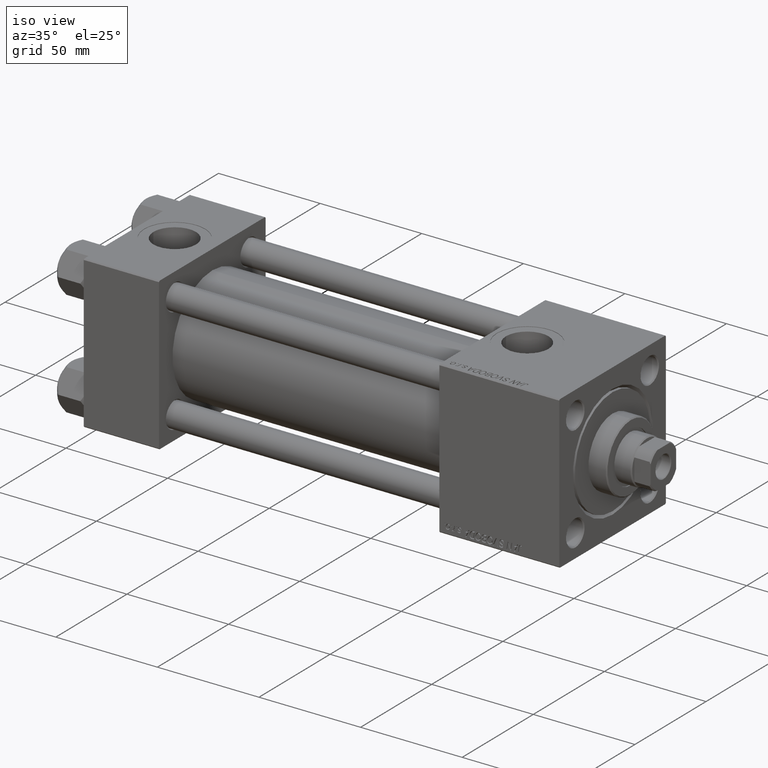
[diagram: clean part render]
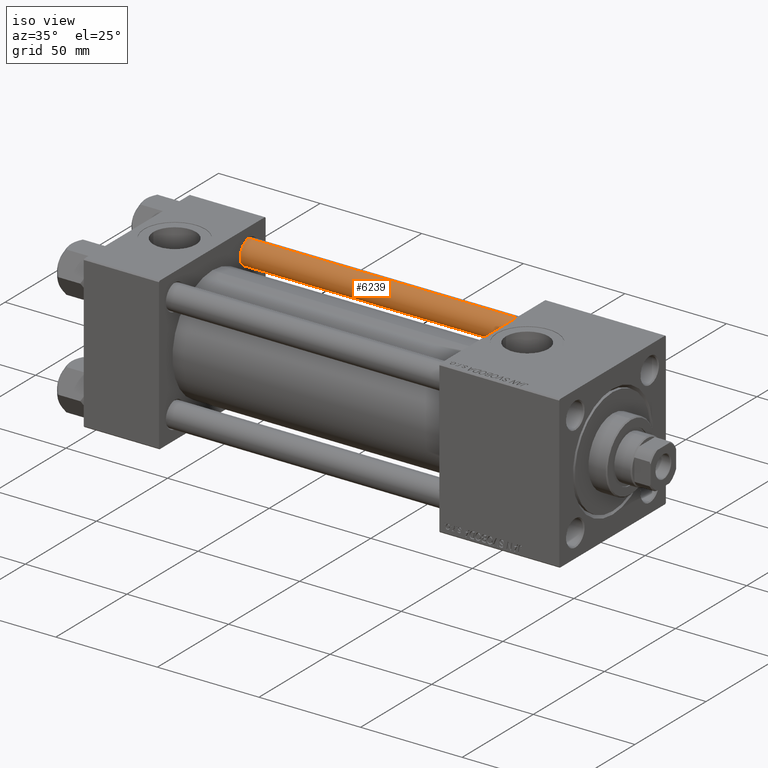
[diagram: same view with one face highlighted and labeled with its STEP entity id]
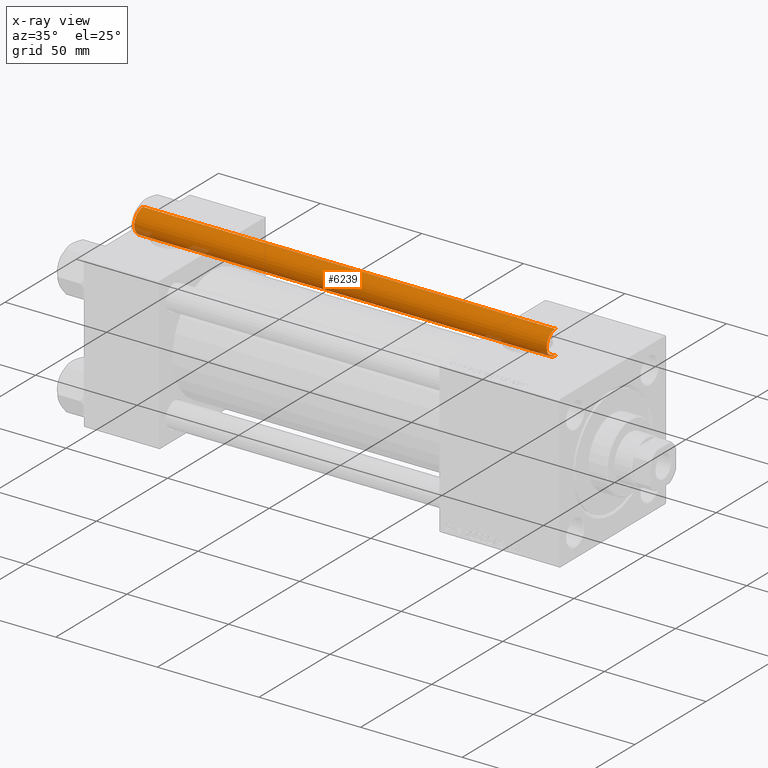
[diagram: x-ray of the same camera — body ghosted, the highlighted face saturated]
A machine part, iso view. The second image highlights one B-rep face of the part: STEP entity #6239.
The next image is the same camera in x-ray: the body ghosted, the highlighted face saturated — about 3% of this face is hidden behind the body in this view.
In plain terms, the highlighted cylindrical surface (edge-blend (fillet) strip) has radius 6 mm, axis along (-1, -0, 0).
Its self-contained STEP definition (entity closure, byte-faithful):
#2524 = CARTESIAN_POINT ( 'NONE',  ( -6.000000000000000888, 0.000000000000000000, 204.0000000000000000 ) ) ;
#4212 = ORIENTED_EDGE ( 'NONE', *, *, #46438, .T. ) ;
#4571 = VECTOR ( 'NONE', #33469, 1000.000000000000000 ) ;
#4851 = DIRECTION ( 'NONE',  ( 1.000000000000000000, 0.000000000000000000, 0.000000000000000000 ) ) ;
#5436 = DIRECTION ( 'NONE',  ( 0.000000000000000000, 0.000000000000000000, -1.000000000000000000 ) ) ;
#6239 = ADVANCED_FACE ( 'NONE', ( #21953 ), #37443, .T. ) ;
#6332 = LINE ( 'NONE', #2524, #4571 ) ;
#8847 = AXIS2_PLACEMENT_3D ( 'NONE', #27423, #23371, #4851 ) ;
#9595 = VERTEX_POINT ( 'NONE', #19321 ) ;
#10294 = CIRCLE ( 'NONE', #33694, 6.000000000000000888 ) ;
#11257 = CIRCLE ( 'NONE', #8847, 6.000000000000000888 ) ;
#12220 = ORIENTED_EDGE ( 'NONE', *, *, #20131, .F. ) ;
#12983 = CARTESIAN_POINT ( 'NONE',  ( -6.000000000000000888, 0.000000000000000000, 0.5000000000000281997 ) ) ;
#14622 = CARTESIAN_POINT ( 'NONE',  ( -6.000000000000000888, 0.000000000000000000, 203.5000000000000000 ) ) ;
#14663 = VERTEX_POINT ( 'NONE', #12983 ) ;
#19321 = CARTESIAN_POINT ( 'NONE',  ( 6.000000000000000888, 7.347880794884120722E-16, 0.5000000000000281997 ) ) ;
#20131 = EDGE_CURVE ( 'NONE', #20691, #9595, #41983, .T. ) ;
#20691 = VERTEX_POINT ( 'NONE', #35935 ) ;
#20971 = VECTOR ( 'NONE', #49113, 1000.000000000000000 ) ;
#21699 = DIRECTION ( 'NONE',  ( -0.000000000000000000, -0.000000000000000000, -1.000000000000000000 ) ) ;
#21953 = FACE_OUTER_BOUND ( 'NONE', #23151, .T. ) ;
#22618 = ORIENTED_EDGE ( 'NONE', *, *, #39891, .T. ) ;
#23151 = EDGE_LOOP ( 'NONE', ( #12220, #24845, #22618, #4212 ) ) ;
#23371 = DIRECTION ( 'NONE',  ( -0.000000000000000000, -0.000000000000000000, 1.000000000000000000 ) ) ;
#24845 = ORIENTED_EDGE ( 'NONE', *, *, #38339, .T. ) ;
#27423 = CARTESIAN_POINT ( 'NONE',  ( 0.000000000000000000, 0.000000000000000000, 0.5000000000000281997 ) ) ;
#28725 = VERTEX_POINT ( 'NONE', #14622 ) ;
#29527 = DIRECTION ( 'NONE',  ( 1.000000000000000000, 0.000000000000000000, 0.000000000000000000 ) ) ;
#33469 = DIRECTION ( 'NONE',  ( -0.000000000000000000, -0.000000000000000000, -1.000000000000000000 ) ) ;
#33611 = DIRECTION ( 'NONE',  ( -1.000000000000000000, 0.000000000000000000, 0.000000000000000000 ) ) ;
#33694 = AXIS2_PLACEMENT_3D ( 'NONE', #40205, #5436, #29527 ) ;
#35935 = CARTESIAN_POINT ( 'NONE',  ( 6.000000000000000888, 7.347880794884120722E-16, 203.5000000000000000 ) ) ;
#36925 = CARTESIAN_POINT ( 'NONE',  ( 0.000000000000000000, 0.000000000000000000, 204.0000000000000000 ) ) ;
#37270 = AXIS2_PLACEMENT_3D ( 'NONE', #36925, #21699, #33611 ) ;
#37443 = CYLINDRICAL_SURFACE ( 'NONE', #37270, 6.000000000000000888 ) ;
#38339 = EDGE_CURVE ( 'NONE', #20691, #28725, #10294, .T. ) ;
#39891 = EDGE_CURVE ( 'NONE', #28725, #14663, #6332, .T. ) ;
#40205 = CARTESIAN_POINT ( 'NONE',  ( 0.000000000000000000, 0.000000000000000000, 203.5000000000000000 ) ) ;
#41983 = LINE ( 'NONE', #45303, #20971 ) ;
#45303 = CARTESIAN_POINT ( 'NONE',  ( 6.000000000000000888, 7.347880794884120722E-16, 204.0000000000000000 ) ) ;
#46438 = EDGE_CURVE ( 'NONE', #14663, #9595, #11257, .T. ) ;
#49113 = DIRECTION ( 'NONE',  ( -0.000000000000000000, -0.000000000000000000, -1.000000000000000000 ) ) ;